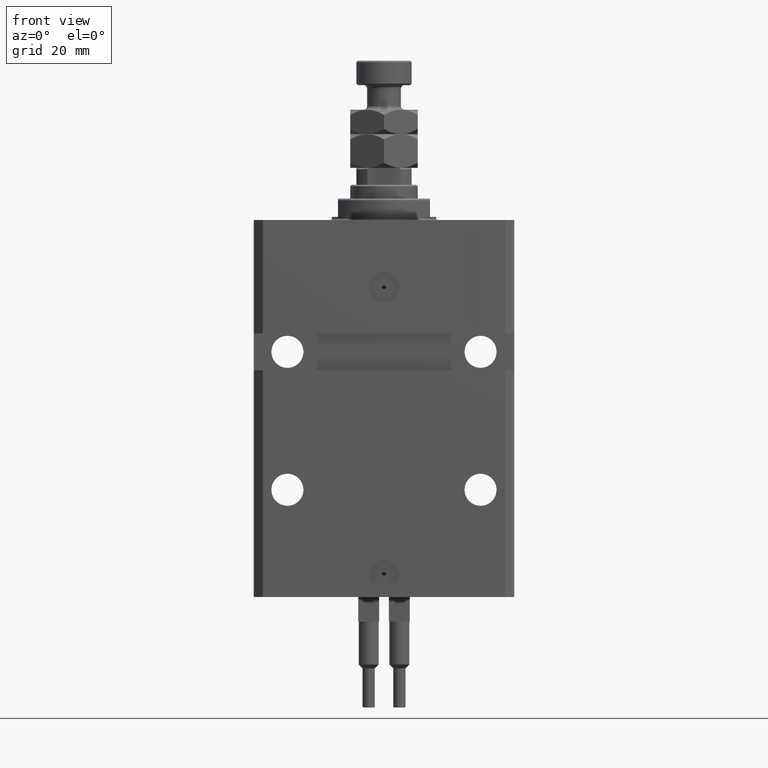
[diagram: clean part render]
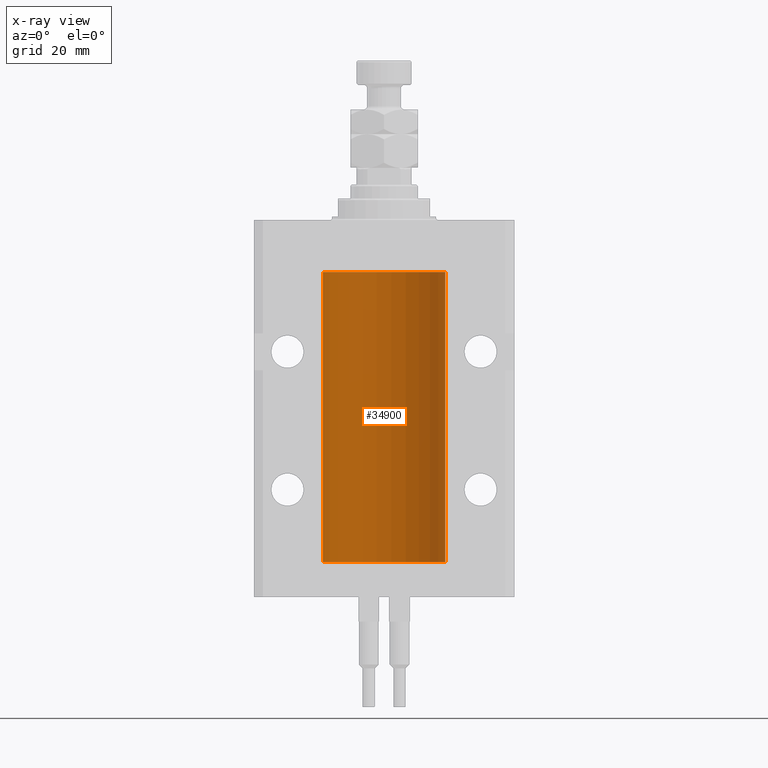
[diagram: x-ray — body ghosted, one internal face saturated and labeled with its STEP entity id]
A machine part, front view, then the same camera in x-ray: the body is ghosted and one INTERNAL B-rep face — a face not visible from any outside direction — is saturated and labeled: STEP entity #34900.
In plain terms, the highlighted cylindrical surface (partial cylindrical patch) has radius 20 mm, axis along (0, 0, 1).
Its self-contained STEP definition (entity closure, byte-faithful):
#12 = EDGE_CURVE ( 'NONE', #43009, #23462, #18006, .T. ) ;
#646 = AXIS2_PLACEMENT_3D ( 'NONE', #31758, #43513, #8464 ) ;
#914 = VECTOR ( 'NONE', #3224, 1000.000000000000000 ) ;
#1759 = CARTESIAN_POINT ( 'NONE',  ( 20.00000000000000000, 0.000000000000000000, -111.5999999999999943 ) ) ;
#2240 = EDGE_CURVE ( 'NONE', #37494, #23462, #47247, .T. ) ;
#3224 = DIRECTION ( 'NONE',  ( -0.000000000000000000, -0.000000000000000000, 1.000000000000000000 ) ) ;
#3793 = CARTESIAN_POINT ( 'NONE',  ( -20.00000000000000000, -2.867584836844214272E-15, -23.37500000000000000 ) ) ;
#4056 = CARTESIAN_POINT ( 'NONE',  ( -19.99947377218718358, 0.1636439183262759223, -108.3912636400465459 ) ) ;
#4103 = CARTESIAN_POINT ( 'NONE',  ( -20.00000000000000000, -1.494965790691426527E-14, -108.3750000000000000 ) ) ;
#5691 = VERTEX_POINT ( 'NONE', #38293 ) ;
#5918 = CARTESIAN_POINT ( 'NONE',  ( -19.99256581701871482, 0.5573276956902001311, -23.67348565770948809 ) ) ;
#7392 = CARTESIAN_POINT ( 'NONE',  ( -19.99999999999999289, 0.08259581631025748882, -108.3749999999999716 ) ) ;
#7574 = DIRECTION ( 'NONE',  ( -0.000000000000000000, -0.000000000000000000, 1.000000000000000000 ) ) ;
#7643 = CARTESIAN_POINT ( 'NONE',  ( -19.99766197842594906, 0.3150331617867563327, -108.4540207010250299 ) ) ;
#7938 = ORIENTED_EDGE ( 'NONE', *, *, #12, .F. ) ;
#8464 = DIRECTION ( 'NONE',  ( 1.000000000000000000, 0.000000000000000000, 0.000000000000000000 ) ) ;
#9123 = AXIS2_PLACEMENT_3D ( 'NONE', #29908, #49594, #40225 ) ;
#9494 = CARTESIAN_POINT ( 'NONE',  ( -19.99999999999999645, 0.08259581631026780002, -23.37500000000000000 ) ) ;
#10169 = DIRECTION ( 'NONE',  ( 0.000000000000000000, 0.000000000000000000, 1.000000000000000000 ) ) ;
#10627 = ORIENTED_EDGE ( 'NONE', *, *, #20043, .F. ) ;
#10649 = LINE ( 'NONE', #38280, #914 ) ;
#11244 = CARTESIAN_POINT ( 'NONE',  ( -20.00000000000010303, 3.580159290815452135E-13, -109.6250000000033253 ) ) ;
#15568 = CARTESIAN_POINT ( 'NONE',  ( -19.99769349528941476, 0.3253804398728720182, -109.5585582072768318 ) ) ;
#15820 = CARTESIAN_POINT ( 'NONE',  ( -20.00000000000000355, 0.1631688615953337806, -109.6249999999998721 ) ) ;
#17680 = CARTESIAN_POINT ( 'NONE',  ( -19.99023380173166231, 0.6249420416828462832, -23.83670793056396064 ) ) ;
#17954 = CARTESIAN_POINT ( 'NONE',  ( -20.00000000000000000, 2.449293598294706513E-15, -111.5999999999999943 ) ) ;
#18006 = LINE ( 'NONE', #34361, #25058 ) ;
#19156 = CARTESIAN_POINT ( 'NONE',  ( -19.99256581701871838, 0.5573276956901952461, -108.6734856577094916 ) ) ;
#19168 = VERTEX_POINT ( 'NONE', #48314 ) ;
#19408 = CARTESIAN_POINT ( 'NONE',  ( -19.99638934703457593, 0.3843678041337614260, -108.5004636297810094 ) ) ;
#19872 = B_SPLINE_CURVE_WITH_KNOTS ( 'NONE', 3,
 ( #50624, #7392, #4056, #7643, #19408, #19156, #22995, #34749, #35261, #15568, #15820, #43192 ),
 .UNSPECIFIED., .F., .F.,
 ( 4, 2, 2, 2, 2, 4 ),
 ( 1.555867690894744095E-18, 0.0002442693137305176681, 0.0004885386274610337099, 0.0009770772549220949586, 0.001465615882383156099, 0.001954154509844217673 ),
 .UNSPECIFIED. ) ;
#20043 = EDGE_CURVE ( 'NONE', #48164, #19168, #25624, .T. ) ;
#20780 = FACE_OUTER_BOUND ( 'NONE', #42634, .T. ) ;
#21261 = CARTESIAN_POINT ( 'NONE',  ( -19.99947377218718714, 0.1636439183262877461, -23.39126364004656011 ) ) ;
#21359 = ORIENTED_EDGE ( 'NONE', *, *, #37577, .T. ) ;
#21771 = CARTESIAN_POINT ( 'NONE',  ( -20.00000000000010303, 3.580159278407742946E-13, -24.62500000000332889 ) ) ;
#22382 = VERTEX_POINT ( 'NONE', #11244 ) ;
#22570 = VECTOR ( 'NONE', #7574, 1000.000000000000000 ) ;
#22995 = CARTESIAN_POINT ( 'NONE',  ( -19.99023380173165876, 0.6249420416828411762, -108.8367079305639322 ) ) ;
#23051 = ORIENTED_EDGE ( 'NONE', *, *, #39449, .F. ) ;
#23462 = VERTEX_POINT ( 'NONE', #34654 ) ;
#24862 = AXIS2_PLACEMENT_3D ( 'NONE', #33463, #10169, #41381 ) ;
#25058 = VECTOR ( 'NONE', #33607, 1000.000000000000000 ) ;
#25624 = LINE ( 'NONE', #17954, #32358 ) ;
#28732 = ORIENTED_EDGE ( 'NONE', *, *, #2240, .T. ) ;
#29908 = CARTESIAN_POINT ( 'NONE',  ( 0.000000000000000000, 0.000000000000000000, -111.5999999999999943 ) ) ;
#29956 = CARTESIAN_POINT ( 'NONE',  ( -19.99766197842594906, 0.3150331617867667688, -23.45402070102505476 ) ) ;
#31143 = B_SPLINE_CURVE_WITH_KNOTS ( 'NONE', 3,
 ( #48620, #9494, #21261, #29956, #32778, #5918, #17680, #48373, #41211, #33541, #33284, #21771 ),
 .UNSPECIFIED., .F., .F.,
 ( 4, 2, 2, 2, 2, 4 ),
 ( 5.848927291235706941E-19, 0.0002442693137305304075, 0.0004885386274610601645, 0.0009770772549221123059, 0.001465615882383164339, 0.001954154509844215938 ),
 .UNSPECIFIED. ) ;
#31758 = CARTESIAN_POINT ( 'NONE',  ( 0.000000000000000000, 0.000000000000000000, -17.00000000000000000 ) ) ;
#32028 = CARTESIAN_POINT ( 'NONE',  ( 20.00000000000000000, 0.000000000000000000, -17.00000000000000000 ) ) ;
#32358 = VECTOR ( 'NONE', #33553, 1000.000000000000000 ) ;
#32778 = CARTESIAN_POINT ( 'NONE',  ( -19.99638934703457593, 0.3843678041337688644, -23.50046362978100944 ) ) ;
#32972 = ORIENTED_EDGE ( 'NONE', *, *, #45918, .T. ) ;
#33284 = CARTESIAN_POINT ( 'NONE',  ( -20.00000000000000000, 0.1631688615953320320, -24.62499999999985434 ) ) ;
#33463 = CARTESIAN_POINT ( 'NONE',  ( 0.000000000000000000, 0.000000000000000000, -111.5999999999999943 ) ) ;
#33541 = CARTESIAN_POINT ( 'NONE',  ( -19.99769349528941120, 0.3253804398728645242, -24.55855820727680339 ) ) ;
#33553 = DIRECTION ( 'NONE',  ( -0.000000000000000000, -0.000000000000000000, 1.000000000000000000 ) ) ;
#33607 = DIRECTION ( 'NONE',  ( -0.000000000000000000, -0.000000000000000000, 1.000000000000000000 ) ) ;
#34361 = CARTESIAN_POINT ( 'NONE',  ( -20.00000000000000000, 2.449293598294706513E-15, -111.5999999999999943 ) ) ;
#34464 = EDGE_CURVE ( 'NONE', #5691, #22382, #10649, .T. ) ;
#34654 = CARTESIAN_POINT ( 'NONE',  ( -20.00000000000000000, 2.449293598294706513E-15, -17.00000000000000000 ) ) ;
#34749 = CARTESIAN_POINT ( 'NONE',  ( -19.99023018003212471, 0.6250578794725484277, -109.1628480970496895 ) ) ;
#34900 = ADVANCED_FACE ( 'NONE', ( #20780 ), #40475, .F. ) ;
#35261 = CARTESIAN_POINT ( 'NONE',  ( -19.99253506710754991, 0.5587120480776772702, -109.3251162083024894 ) ) ;
#37494 = VERTEX_POINT ( 'NONE', #32028 ) ;
#37577 = EDGE_CURVE ( 'NONE', #43009, #19168, #31143, .T. ) ;
#38280 = CARTESIAN_POINT ( 'NONE',  ( -20.00000000000000000, 2.449293598294706513E-15, -111.5999999999999943 ) ) ;
#38293 = CARTESIAN_POINT ( 'NONE',  ( -20.00000000000000000, 2.449293598294706513E-15, -111.5999999999999943 ) ) ;
#39449 = EDGE_CURVE ( 'NONE', #45262, #5691, #42740, .T. ) ;
#40225 = DIRECTION ( 'NONE',  ( 1.000000000000000000, 0.000000000000000000, 0.000000000000000000 ) ) ;
#40475 = CYLINDRICAL_SURFACE ( 'NONE', #9123, 20.00000000000000000 ) ;
#41211 = CARTESIAN_POINT ( 'NONE',  ( -19.99253506710754991, 0.5587120480776751608, -24.32511620830248589 ) ) ;
#41381 = DIRECTION ( 'NONE',  ( 1.000000000000000000, 0.000000000000000000, 0.000000000000000000 ) ) ;
#42001 = ORIENTED_EDGE ( 'NONE', *, *, #43022, .T. ) ;
#42634 = EDGE_LOOP ( 'NONE', ( #43578, #23051, #32972, #28732, #7938, #21359, #10627, #42001 ) ) ;
#42740 = CIRCLE ( 'NONE', #24862, 20.00000000000000000 ) ;
#43009 = VERTEX_POINT ( 'NONE', #3793 ) ;
#43022 = EDGE_CURVE ( 'NONE', #48164, #22382, #19872, .T. ) ;
#43192 = CARTESIAN_POINT ( 'NONE',  ( -20.00000000000010303, 3.580159290815452135E-13, -109.6250000000033253 ) ) ;
#43513 = DIRECTION ( 'NONE',  ( 0.000000000000000000, 0.000000000000000000, 1.000000000000000000 ) ) ;
#43578 = ORIENTED_EDGE ( 'NONE', *, *, #34464, .F. ) ;
#45262 = VERTEX_POINT ( 'NONE', #1759 ) ;
#45918 = EDGE_CURVE ( 'NONE', #45262, #37494, #45946, .T. ) ;
#45946 = LINE ( 'NONE', #50287, #22570 ) ;
#47247 = CIRCLE ( 'NONE', #646, 20.00000000000000000 ) ;
#48164 = VERTEX_POINT ( 'NONE', #4103 ) ;
#48314 = CARTESIAN_POINT ( 'NONE',  ( -20.00000000000010303, 3.580159278407742946E-13, -24.62500000000332889 ) ) ;
#48373 = CARTESIAN_POINT ( 'NONE',  ( -19.99023018003212471, 0.6250578794725500931, -24.16284809704970371 ) ) ;
#48620 = CARTESIAN_POINT ( 'NONE',  ( -20.00000000000000000, -2.867584836844214272E-15, -23.37500000000000000 ) ) ;
#49594 = DIRECTION ( 'NONE',  ( -0.000000000000000000, -0.000000000000000000, 1.000000000000000000 ) ) ;
#50287 = CARTESIAN_POINT ( 'NONE',  ( 20.00000000000000000, 0.000000000000000000, -111.5999999999999943 ) ) ;
#50624 = CARTESIAN_POINT ( 'NONE',  ( -20.00000000000000000, -1.494965790691426527E-14, -108.3750000000000000 ) ) ;